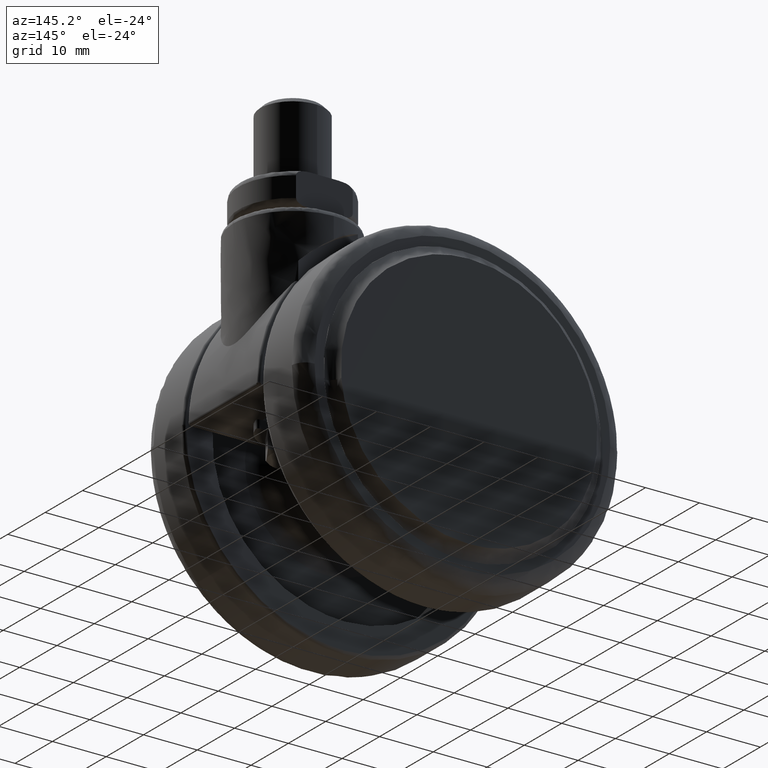
[diagram: clean part render]
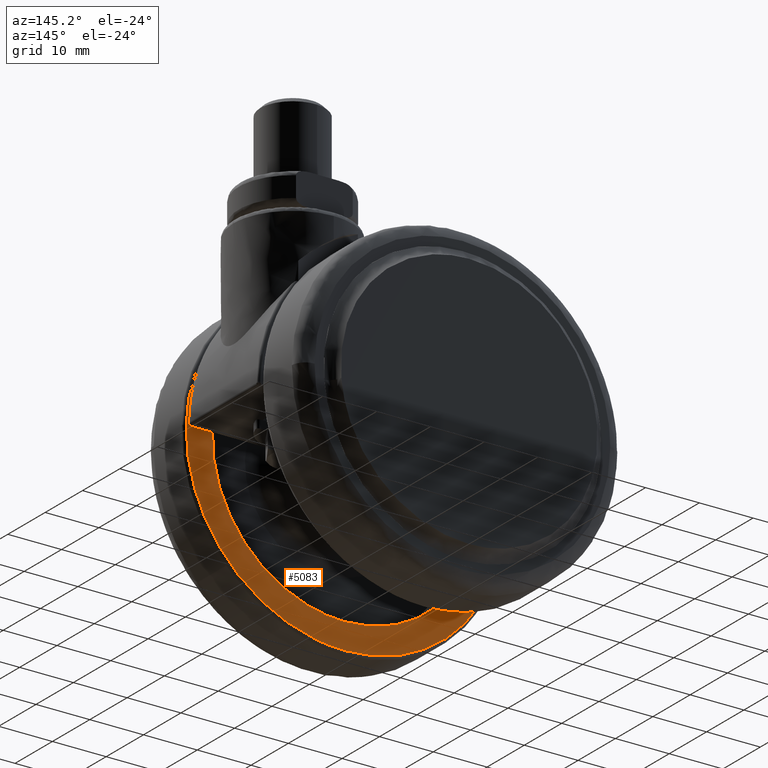
[diagram: same view with one face highlighted and labeled with its STEP entity id]
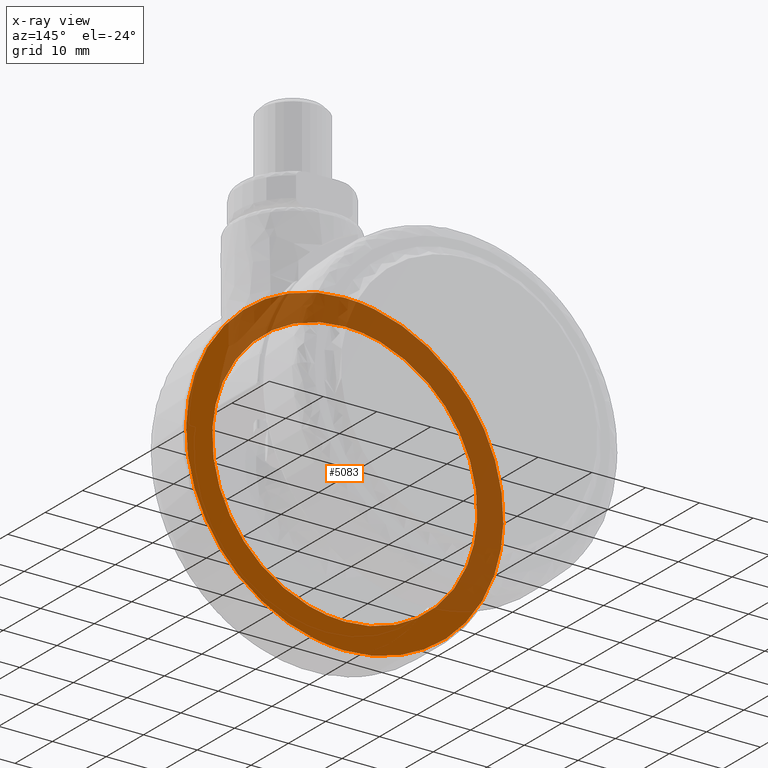
[diagram: x-ray of the same camera — body ghosted, the highlighted face saturated]
A machine part, auxiliary view. The second image highlights one B-rep face of the part: STEP entity #5083.
The next image is the same camera in x-ray: the body ghosted, the highlighted face saturated — about 52% of this face is hidden behind the body in this view.
In plain terms, the highlighted face is a freeform B-spline surface patch.
Its self-contained STEP definition (entity closure, byte-faithful):
#4903=CARTESIAN_POINT('',(24.618791364351079,-10.500000000000000,1.505730005688185));
#4904=VERTEX_POINT('',#4903);
#4910=CARTESIAN_POINT('',(0.0,-10.500000000000000,-24.664794973643449));
#4911=VERTEX_POINT('',#4910);
#4912=CARTESIAN_POINT('',(24.618791364351079,-10.500000000000000,1.505730005688186));
#4913=CARTESIAN_POINT('',(24.664794973635679,-10.499999999999995,0.753567762322385));
#4914=CARTESIAN_POINT('',(24.664794973635789,-10.500000000000000,-4.671211E-013));
#4915=CARTESIAN_POINT('',(24.664794973639736,-10.499999999999998,-24.664794973643666));
#4916=CARTESIAN_POINT('',(0.0,-10.500000000000000,-24.664794973643449));
#4924=(BOUNDED_CURVE()B_SPLINE_CURVE(2,(#4912,#4913,#4914,#4915,#4916),.UNSPECIFIED.,.F.,.U.)B_SPLINE_CURVE_WITH_KNOTS((3,2,3),(0.239333100351936,0.250000000000000,0.500000000000000),.UNSPECIFIED.)CURVE()GEOMETRIC_REPRESENTATION_ITEM()RATIONAL_B_SPLINE_CURVE((0.976072337669331,0.987502949709274,1.0,0.707106781186548,1.0))REPRESENTATION_ITEM(''));
#4925=EDGE_CURVE('',#4904,#4911,#4924,.T.);
#4927=CARTESIAN_POINT('',(-24.618791364351079,-10.500000000000000,-1.505730005688185));
#4928=VERTEX_POINT('',#4927);
#4929=CARTESIAN_POINT('',(0.0,-10.500000000000000,-24.664794973643449));
#4930=CARTESIAN_POINT('',(-23.202340877007924,-10.500000000000000,-24.664794973643197));
#4931=CARTESIAN_POINT('',(-24.618791364351079,-10.500000000000000,-1.505730005688186));
#4939=(BOUNDED_CURVE()B_SPLINE_CURVE(2,(#4929,#4930,#4931),.UNSPECIFIED.,.F.,.U.)B_SPLINE_CURVE_WITH_KNOTS((3,3),(0.500000000000000,0.739333100351936),.UNSPECIFIED.)CURVE()GEOMETRIC_REPRESENTATION_ITEM()RATIONAL_B_SPLINE_CURVE((1.0,0.719603831477274,0.976072337669331))REPRESENTATION_ITEM(''));
#4940=EDGE_CURVE('',#4911,#4928,#4939,.T.);
#4972=CARTESIAN_POINT('',(0.0,-10.500000000000000,24.664794973643449));
#4973=VERTEX_POINT('',#4972);
#4974=CARTESIAN_POINT('',(-24.618791364351079,-10.500000000000000,-1.505730005688186));
#4975=CARTESIAN_POINT('',(-24.664794973635669,-10.500000000000005,-0.753567762322387));
#4976=CARTESIAN_POINT('',(-24.664794973635789,-10.500000000000000,4.632427E-013));
#4977=CARTESIAN_POINT('',(-24.664794973639736,-10.500000000000002,24.664794973643666));
#4978=CARTESIAN_POINT('',(0.0,-10.500000000000000,24.664794973643449));
#4986=(BOUNDED_CURVE()B_SPLINE_CURVE(2,(#4974,#4975,#4976,#4977,#4978),.UNSPECIFIED.,.F.,.U.)B_SPLINE_CURVE_WITH_KNOTS((3,2,3),(0.739333100351936,0.750000000000000,1.0),.UNSPECIFIED.)CURVE()GEOMETRIC_REPRESENTATION_ITEM()RATIONAL_B_SPLINE_CURVE((0.976072337669331,0.987502949709274,1.0,0.707106781186548,1.0))REPRESENTATION_ITEM(''));
#4987=EDGE_CURVE('',#4928,#4973,#4986,.T.);
#4989=CARTESIAN_POINT('',(0.0,-10.500000000000000,24.664794973643449));
#4990=CARTESIAN_POINT('',(23.202340877007924,-10.499999999999998,24.664794973643197));
#4991=CARTESIAN_POINT('',(24.618791364351079,-10.500000000000000,1.505730005688186));
#4999=(BOUNDED_CURVE()B_SPLINE_CURVE(2,(#4989,#4990,#4991),.UNSPECIFIED.,.F.,.U.)B_SPLINE_CURVE_WITH_KNOTS((3,3),(0.0,0.239333100351936),.UNSPECIFIED.)CURVE()GEOMETRIC_REPRESENTATION_ITEM()RATIONAL_B_SPLINE_CURVE((1.0,0.719603831477274,0.976072337669331))REPRESENTATION_ITEM(''));
#5000=EDGE_CURVE('',#4973,#4904,#4999,.T.);
#5006=CARTESIAN_POINT('',(-32.436802771405830,-10.500000000000000,32.447049885647203));
#5007=CARTESIAN_POINT('',(-32.436802771405830,-10.500000000000000,-32.447051468150534));
#5008=CARTESIAN_POINT('',(32.436804353409372,-10.500000000000000,32.447049885647203));
#5009=CARTESIAN_POINT('',(32.436804353409372,-10.500000000000000,-32.447051468150534));
#5010=B_SPLINE_SURFACE_WITH_KNOTS('',1,1,((#5006,#5008),(#5007,#5009)),.UNSPECIFIED.,.F.,.F.,.U.,(2,2),(2,2),(0.0,64.894101353797737),(0.0,64.873607124815209),.UNSPECIFIED.);
#5011=CARTESIAN_POINT('',(0.0,-10.500000000000000,29.500000000000600));
#5012=VERTEX_POINT('',#5011);
#5013=CARTESIAN_POINT('',(29.490683594620560,-10.500000000000000,0.741337815947020));
#5014=VERTEX_POINT('',#5013);
#5015=CARTESIAN_POINT('',(0.0,-10.500000000000000,29.500000000000600));
#5016=CARTESIAN_POINT('',(28.767747352616716,-10.500000000000000,29.500000000135909));
#5017=CARTESIAN_POINT('',(29.490683594620563,-10.500000000000002,0.741337815947020));
#5025=(BOUNDED_CURVE()B_SPLINE_CURVE(2,(#5015,#5016,#5017),.UNSPECIFIED.,.F.,.U.)B_SPLINE_CURVE_WITH_KNOTS((3,3),(0.0,0.245579891769227),.UNSPECIFIED.)CURVE()GEOMETRIC_REPRESENTATION_ITEM()RATIONAL_B_SPLINE_CURVE((1.0,0.712285260095408,0.989826157680263))REPRESENTATION_ITEM(''));
#5026=EDGE_CURVE('',#5012,#5014,#5025,.T.);
#5027=ORIENTED_EDGE('',*,*,#5026,.T.);
#5028=CARTESIAN_POINT('',(0.0,-10.500000000000000,-29.500000000000600));
#5029=VERTEX_POINT('',#5028);
#5030=CARTESIAN_POINT('',(29.490683594620563,-10.500000000000002,0.741337815947020));
#5031=CARTESIAN_POINT('',(29.500000010699718,-10.499999999999995,0.370727447957652));
#5032=CARTESIAN_POINT('',(29.500000010632071,-10.500000000000000,2.672554E-010));
#5033=CARTESIAN_POINT('',(29.500000005249529,-10.499999999999998,-29.499999999868656));
#5034=CARTESIAN_POINT('',(0.0,-10.500000000000000,-29.500000000000600));
#5042=(BOUNDED_CURVE()B_SPLINE_CURVE(2,(#5030,#5031,#5032,#5033,#5034),.UNSPECIFIED.,.F.,.U.)B_SPLINE_CURVE_WITH_KNOTS((3,2,3),(0.245579891769227,0.250000000000000,0.500000000000000),.UNSPECIFIED.)CURVE()GEOMETRIC_REPRESENTATION_ITEM()RATIONAL_B_SPLINE_CURVE((0.989826157680263,0.994821521091140,1.0,0.707106781186548,1.0))REPRESENTATION_ITEM(''));
#5043=EDGE_CURVE('',#5014,#5029,#5042,.T.);
#5044=ORIENTED_EDGE('',*,*,#5043,.T.);
#5045=CARTESIAN_POINT('',(-29.490683594620560,-10.500000000000000,-0.741337815947009));
#5046=VERTEX_POINT('',#5045);
#5047=CARTESIAN_POINT('',(0.0,-10.500000000000000,-29.500000000000600));
#5048=CARTESIAN_POINT('',(-28.767747352616720,-10.500000000000002,-29.500000000135913));
#5049=CARTESIAN_POINT('',(-29.490683594620567,-10.499999999999998,-0.741337815947009));
#5057=(BOUNDED_CURVE()B_SPLINE_CURVE(2,(#5047,#5048,#5049),.UNSPECIFIED.,.F.,.U.)B_SPLINE_CURVE_WITH_KNOTS((3,3),(0.500000000000000,0.745579891769227),.UNSPECIFIED.)CURVE()GEOMETRIC_REPRESENTATION_ITEM()RATIONAL_B_SPLINE_CURVE((1.0,0.712285260095408,0.989826157680263))REPRESENTATION_ITEM(''));
#5058=EDGE_CURVE('',#5029,#5046,#5057,.T.);
#5059=ORIENTED_EDGE('',*,*,#5058,.T.);
#5060=CARTESIAN_POINT('',(-29.490683594620567,-10.499999999999998,-0.741337815947009));
#5061=CARTESIAN_POINT('',(-29.500000010699715,-10.500000000000002,-0.370727447957650));
#5062=CARTESIAN_POINT('',(-29.500000010632071,-10.500000000000000,-2.672627E-010));
#5063=CARTESIAN_POINT('',(-29.500000005249529,-10.500000000000002,29.499999999868646));
#5064=CARTESIAN_POINT('',(0.0,-10.500000000000000,29.500000000000600));
#5072=(BOUNDED_CURVE()B_SPLINE_CURVE(2,(#5060,#5061,#5062,#5063,#5064),.UNSPECIFIED.,.F.,.U.)B_SPLINE_CURVE_WITH_KNOTS((3,2,3),(0.745579891769227,0.750000000000000,1.0),.UNSPECIFIED.)CURVE()GEOMETRIC_REPRESENTATION_ITEM()RATIONAL_B_SPLINE_CURVE((0.989826157680263,0.994821521091140,1.0,0.707106781186548,1.0))REPRESENTATION_ITEM(''));
#5073=EDGE_CURVE('',#5046,#5012,#5072,.T.);
#5074=ORIENTED_EDGE('',*,*,#5073,.T.);
#5075=EDGE_LOOP('',(#5027,#5044,#5059,#5074));
#5076=FACE_OUTER_BOUND('',#5075,.T.);
#5077=ORIENTED_EDGE('',*,*,#4940,.F.);
#5078=ORIENTED_EDGE('',*,*,#4925,.F.);
#5079=ORIENTED_EDGE('',*,*,#5000,.F.);
#5080=ORIENTED_EDGE('',*,*,#4987,.F.);
#5081=EDGE_LOOP('',(#5077,#5078,#5079,#5080));
#5082=FACE_BOUND('',#5081,.T.);
#5083=ADVANCED_FACE('',(#5076,#5082),#5010,.F.);